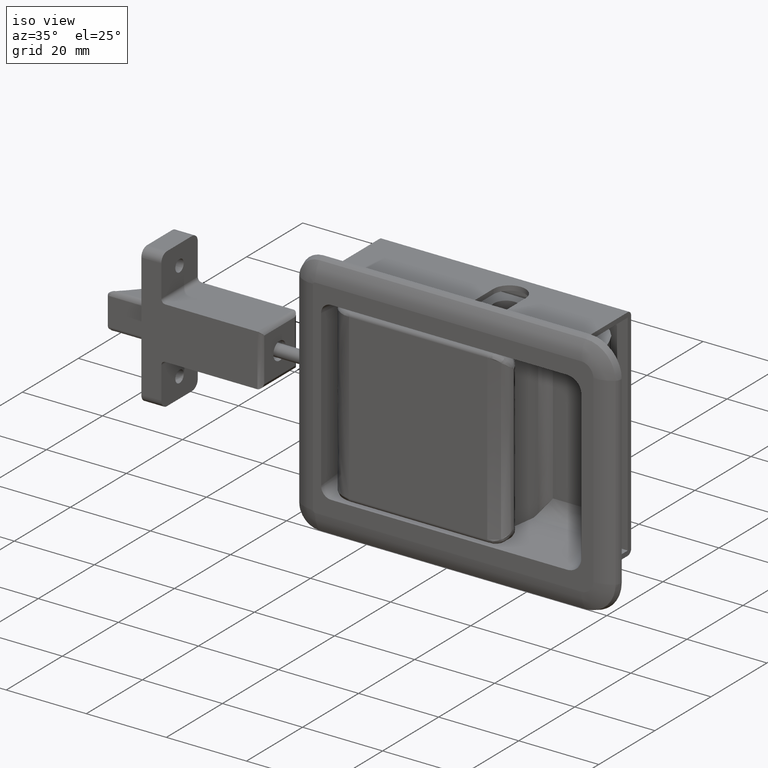
[diagram: clean part render]
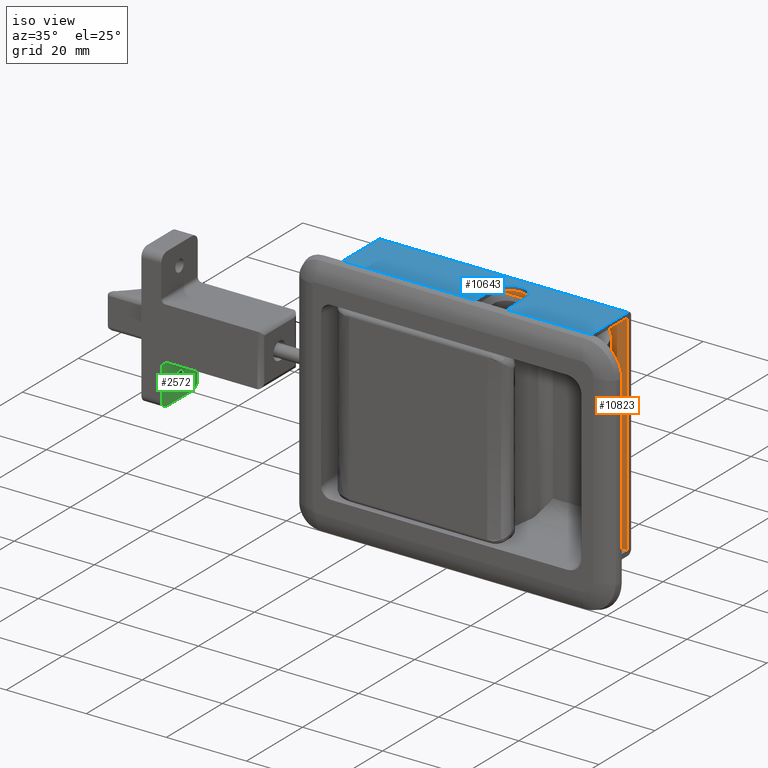
[diagram: same view with three faces highlighted in distinct colors, each labeled with its STEP entity id]
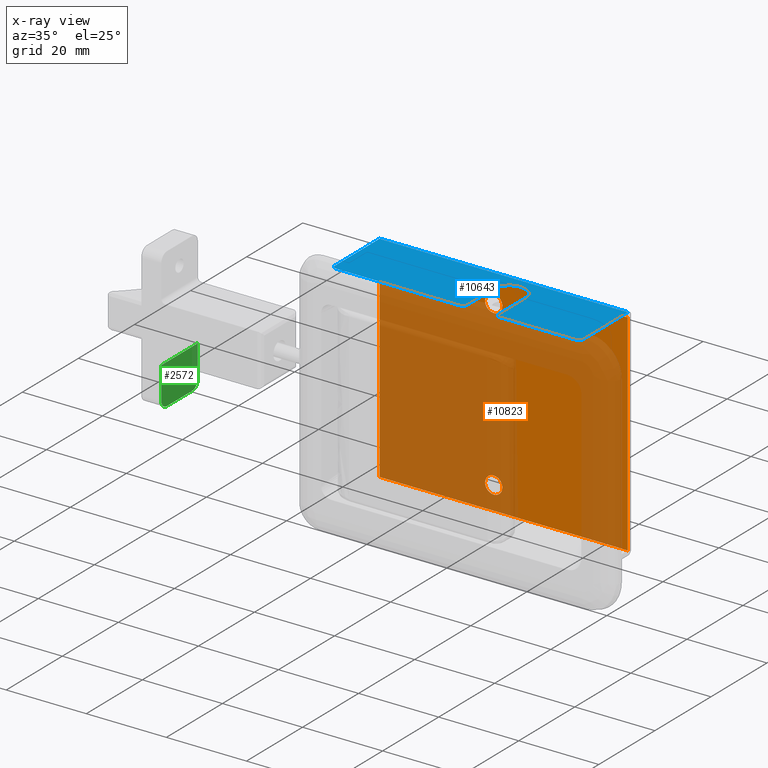
[diagram: x-ray of the same camera — body ghosted, the three highlighted faces saturated]
A machine part, iso view with three faces highlighted in distinct colors.
The next image is the same camera in x-ray (body ghosted, the three faces saturated) — at least one of them is partly hidden behind the body in this view.
Their STEP definitions:

[orange] entity #10823 — the highlighted face is a freeform B-spline surface patch.
#9396=CARTESIAN_POINT('',(22.006955568731541,42.549999999991492,-22.033487912675501));
#9397=VERTEX_POINT('',#9396);
#9398=CARTESIAN_POINT('',(20.500000000000000,42.549999999998562,-22.649999999999999));
#9399=VERTEX_POINT('',#9398);
#9400=CARTESIAN_POINT('',(22.006955568731541,42.549999999991492,-22.033487912675501));
#9401=CARTESIAN_POINT('',(21.833383932131330,42.549999999992323,-22.204307204109131));
#9402=CARTESIAN_POINT('',(21.369280876385620,42.549999999994483,-22.526038821031559));
#9403=CARTESIAN_POINT('',(20.813203712477510,42.549999999997112,-22.650495695679361));
#9404=CARTESIAN_POINT('',(20.500000000000000,42.549999999998562,-22.649999999999999));
#9405=B_SPLINE_CURVE_WITH_KNOTS('',3,(#9400,#9401,#9402,#9403,#9404),.UNSPECIFIED.,.F.,.U.,(4,1,4),(0.000000173502153,0.730629539242379,1.670008418884083),.UNSPECIFIED.);
#9406=EDGE_CURVE('',#9397,#9399,#9405,.T.);
#9459=CARTESIAN_POINT('',(22.033487823707510,42.550000000009071,-18.993044516222700));
#9460=VERTEX_POINT('',#9459);
#9466=CARTESIAN_POINT('',(20.500000000000000,42.549999999998562,-18.350000000000001));
#9467=VERTEX_POINT('',#9466);
#9468=CARTESIAN_POINT('',(20.500000000000000,42.549999999998562,-18.350000000000001));
#9469=CARTESIAN_POINT('',(20.820246832417322,42.550000000000750,-18.349458072607849));
#9470=CARTESIAN_POINT('',(21.388780072817319,42.550000000004637,-18.479706863277841));
#9471=CARTESIAN_POINT('',(21.859095555745728,42.550000000007870,-18.815306189361561));
#9472=CARTESIAN_POINT('',(22.033487823707510,42.550000000009071,-18.993044516222700));
#9473=B_SPLINE_CURVE_WITH_KNOTS('',3,(#9468,#9469,#9470,#9471,#9472),.UNSPECIFIED.,.F.,.U.,(4,1,4),(0.000000194119987,0.960491909279939,1.707542527531612),.UNSPECIFIED.);
#9474=EDGE_CURVE('',#9467,#9460,#9473,.T.);
#9476=CARTESIAN_POINT('',(18.350000000000019,42.549999999998562,-20.499999753959180));
#9477=VERTEX_POINT('',#9476);
#9478=CARTESIAN_POINT('',(18.350000000000019,42.549999999998562,-20.499999753959180));
#9479=CARTESIAN_POINT('',(18.348873124164570,42.549999999998569,-20.112789943865959));
#9480=CARTESIAN_POINT('',(18.535571252793218,42.549999999998612,-19.445546447695630));
#9481=CARTESIAN_POINT('',(19.089560824981181,42.549999999998491,-18.834521985573549));
#9482=CARTESIAN_POINT('',(19.726423798500470,42.549999999998633,-18.452937415955009));
#9483=CARTESIAN_POINT('',(20.183272344845520,42.549999999998612,-18.349484500534238));
#9484=CARTESIAN_POINT('',(20.500000000000000,42.549999999998562,-18.350000000000001));
#9485=B_SPLINE_CURVE_WITH_KNOTS('',3,(#9478,#9479,#9480,#9481,#9482,#9483,#9484),.UNSPECIFIED.,.F.,.U.,(4,1,1,1,4),(0.000000500345338,1.161052982077539,2.005408912618811,2.427613986051226,3.377550710403197),.UNSPECIFIED.);
#9486=EDGE_CURVE('',#9477,#9467,#9485,.T.);
#9488=CARTESIAN_POINT('',(20.500000000000000,42.549999999998562,-22.649999999999999));
#9489=CARTESIAN_POINT('',(20.253752550945300,42.549999999998583,-22.650138474465699));
#9490=CARTESIAN_POINT('',(19.726076684150250,42.549999999998541,-22.558432769075502));
#9491=CARTESIAN_POINT('',(19.018447290771711,42.549999999998569,-22.134705605475901));
#9492=CARTESIAN_POINT('',(18.484576633514951,42.549999999998633,-21.414237799547529));
#9493=CARTESIAN_POINT('',(18.349510423392420,42.549999999998541,-20.816715440528672));
#9494=CARTESIAN_POINT('',(18.350000000000019,42.549999999998562,-20.499999753959180));
#9495=B_SPLINE_CURVE_WITH_KNOTS('',3,(#9488,#9489,#9490,#9491,#9492,#9493,#9494),.UNSPECIFIED.,.F.,.U.,(4,1,1,1,4),(0.000000499047775,0.738833792027937,1.583242716001235,2.427614185247631,3.377550987775592),.UNSPECIFIED.);
#9496=EDGE_CURVE('',#9399,#9477,#9495,.T.);
#9515=CARTESIAN_POINT('',(22.649999999999981,42.549999999998548,-20.500000246040820));
#9516=VERTEX_POINT('',#9515);
#9517=CARTESIAN_POINT('',(22.649999999999981,42.549999999998548,-20.500000246040820));
#9518=CARTESIAN_POINT('',(22.650530134429221,42.549999999997027,-20.820246447159821));
#9519=CARTESIAN_POINT('',(22.520314567567709,42.549999999994547,-21.388784982667289));
#9520=CARTESIAN_POINT('',(22.184677582092569,42.549999999992252,-21.859092884061891));
#9521=CARTESIAN_POINT('',(22.006955568731541,42.549999999991492,-22.033487912675501));
#9522=B_SPLINE_CURVE_WITH_KNOTS('',3,(#9517,#9518,#9519,#9520,#9521),.UNSPECIFIED.,.F.,.U.,(4,1,4),(0.000000194141672,0.960491799302288,1.707542332024914),.UNSPECIFIED.);
#9523=EDGE_CURVE('',#9516,#9397,#9522,.T.);
#9525=CARTESIAN_POINT('',(22.033487823707510,42.550000000009071,-18.993044516222700));
#9526=CARTESIAN_POINT('',(22.253358207462181,42.550000000007579,-19.216093397475341));
#9527=CARTESIAN_POINT('',(22.554379863028469,42.550000000004040,-19.699938640798980));
#9528=CARTESIAN_POINT('',(22.650164419603509,42.550000000000310,-20.256477824130549));
#9529=CARTESIAN_POINT('',(22.649999999999981,42.549999999998548,-20.500000246040820));
#9530=B_SPLINE_CURVE_WITH_KNOTS('',3,(#9525,#9526,#9527,#9528,#9529),.UNSPECIFIED.,.F.,.U.,(4,1,4),(0.000000173522661,0.939379165713022,1.670008618991998),.UNSPECIFIED.);
#9531=EDGE_CURVE('',#9460,#9516,#9530,.T.);
#9578=CARTESIAN_POINT('',(22.006955568731541,42.549999999991492,18.966512087324499));
#9579=VERTEX_POINT('',#9578);
#9580=CARTESIAN_POINT('',(20.500000000000000,42.549999999998562,18.350000000000001));
#9581=VERTEX_POINT('',#9580);
#9582=CARTESIAN_POINT('',(22.006955568731541,42.549999999991492,18.966512087324499));
#9583=CARTESIAN_POINT('',(21.833361369590271,42.549999999992330,18.795698405664609));
#9584=CARTESIAN_POINT('',(21.369311524407220,42.549999999994377,18.473949198192109));
#9585=CARTESIAN_POINT('',(20.813188274136781,42.549999999997191,18.349511269471570));
#9586=CARTESIAN_POINT('',(20.500000000000000,42.549999999998562,18.350000000000001));
#9587=B_SPLINE_CURVE_WITH_KNOTS('',3,(#9582,#9583,#9584,#9585,#9586),.UNSPECIFIED.,.F.,.U.,(4,1,4),(0.000000173502104,0.730629539242320,1.670008418884087),.UNSPECIFIED.);
#9588=EDGE_CURVE('',#9579,#9581,#9587,.T.);
#9641=CARTESIAN_POINT('',(22.033487823707510,42.550000000009071,22.006955483777290));
#9642=VERTEX_POINT('',#9641);
#9648=CARTESIAN_POINT('',(20.500000000000000,42.549999999998562,22.649999999999999));
#9649=VERTEX_POINT('',#9648);
#9650=CARTESIAN_POINT('',(20.500000000000000,42.549999999998562,22.649999999999999));
#9651=CARTESIAN_POINT('',(20.820227082080660,42.550000000000722,22.650513636305298));
#9652=CARTESIAN_POINT('',(21.388832437544171,42.550000000004680,22.520362876436440));
#9653=CARTESIAN_POINT('',(21.859061431772759,42.550000000007870,22.184651465573051));
#9654=CARTESIAN_POINT('',(22.033487823707510,42.550000000009071,22.006955483777290));
#9655=B_SPLINE_CURVE_WITH_KNOTS('',3,(#9650,#9651,#9652,#9653,#9654),.UNSPECIFIED.,.F.,.U.,(4,1,4),(0.000000194119794,0.960491909279892,1.707542527531615),.UNSPECIFIED.);
#9656=EDGE_CURVE('',#9649,#9642,#9655,.T.);
#9658=CARTESIAN_POINT('',(18.350000000000019,42.549999999998562,20.500000246040820));
#9659=VERTEX_POINT('',#9658);
#9660=CARTESIAN_POINT('',(18.350000000000019,42.549999999998562,20.500000246040820));
#9661=CARTESIAN_POINT('',(18.349885378164078,42.549999999998583,20.746238638340269));
#9662=CARTESIAN_POINT('',(18.441533471171020,42.549999999998541,21.273931063564191));
#9663=CARTESIAN_POINT('',(18.865314712683279,42.549999999998562,21.981532001325188));
#9664=CARTESIAN_POINT('',(19.585747707618999,42.549999999998548,22.515475585438288));
#9665=CARTESIAN_POINT('',(20.183288614077629,42.549999999998519,22.650446674603081));
#9666=CARTESIAN_POINT('',(20.500000000000000,42.549999999998562,22.649999999999999));
#9667=B_SPLINE_CURVE_WITH_KNOTS('',3,(#9660,#9661,#9662,#9663,#9664,#9665,#9666),.UNSPECIFIED.,.F.,.U.,(4,1,1,1,4),(0.000000500345446,0.738833732423823,1.583242585907885,2.427613986051440,3.377550710403195),.UNSPECIFIED.);
#9668=EDGE_CURVE('',#9659,#9649,#9667,.T.);
#9670=CARTESIAN_POINT('',(20.500000000000000,42.549999999998562,18.350000000000001));
#9671=CARTESIAN_POINT('',(20.253741433115469,42.549999999998569,18.349883730222260));
#9672=CARTESIAN_POINT('',(19.726091643988969,42.549999999998548,18.441535363766249));
#9673=CARTESIAN_POINT('',(19.018439558766620,42.549999999998548,18.865310855373028));
#9674=CARTESIAN_POINT('',(18.484580376394440,42.549999999998668,19.585757111136662));
#9675=CARTESIAN_POINT('',(18.349510471799778,42.549999999998441,20.183283741938052));
#9676=CARTESIAN_POINT('',(18.350000000000019,42.549999999998562,20.500000246040820));
#9677=B_SPLINE_CURVE_WITH_KNOTS('',3,(#9670,#9671,#9672,#9673,#9674,#9675,#9676),.UNSPECIFIED.,.F.,.U.,(4,1,1,1,4),(0.000000499045924,0.738833792026614,1.583242716000543,2.427614185247384,3.377550987775607),.UNSPECIFIED.);
#9678=EDGE_CURVE('',#9581,#9659,#9677,.T.);
#9697=CARTESIAN_POINT('',(22.649999999999981,42.549999999998548,20.499999753959180));
#9698=VERTEX_POINT('',#9697);
#9699=CARTESIAN_POINT('',(22.649999999999981,42.549999999998548,20.499999753959180));
#9700=CARTESIAN_POINT('',(22.650539809060039,42.549999999996963,20.179751156776931));
#9701=CARTESIAN_POINT('',(22.520296649771819,42.549999999994682,19.611219706738382));
#9702=CARTESIAN_POINT('',(22.184693049004370,42.549999999992210,19.140906163267118));
#9703=CARTESIAN_POINT('',(22.006955568731541,42.549999999991492,18.966512087324499));
#9704=B_SPLINE_CURVE_WITH_KNOTS('',3,(#9699,#9700,#9701,#9702,#9703),.UNSPECIFIED.,.F.,.U.,(4,1,4),(0.000000194141464,0.960491799302277,1.707542332024911),.UNSPECIFIED.);
#9705=EDGE_CURVE('',#9698,#9579,#9704,.T.);
#9707=CARTESIAN_POINT('',(22.033487823707510,42.550000000009071,22.006955483777290));
#9708=CARTESIAN_POINT('',(22.253354319394091,42.550000000007543,21.783915749394730));
#9709=CARTESIAN_POINT('',(22.554389218164701,42.550000000004133,21.300042723816969));
#9710=CARTESIAN_POINT('',(22.650159436776871,42.550000000000210,20.743541671685112));
#9711=CARTESIAN_POINT('',(22.649999999999981,42.549999999998548,20.499999753959180));
#9712=B_SPLINE_CURVE_WITH_KNOTS('',3,(#9707,#9708,#9709,#9710,#9711),.UNSPECIFIED.,.F.,.U.,(4,1,4),(0.000000173522663,0.939379165713052,1.670008618991993),.UNSPECIFIED.);
#9713=EDGE_CURVE('',#9642,#9698,#9712,.T.);
#10429=CARTESIAN_POINT('',(54.0,42.549999999999997,-26.300000000000001));
#10430=VERTEX_POINT('',#10429);
#10480=CARTESIAN_POINT('',(54.0,42.549999999999997,26.300000000000001));
#10481=VERTEX_POINT('',#10480);
#10487=CARTESIAN_POINT('',(54.0,42.549999999999997,26.300000000000001));
#10488=CARTESIAN_POINT('',(54.0,42.549999999999997,-26.300000000000001));
#10489=QUASI_UNIFORM_CURVE('',1,(#10487,#10488),.UNSPECIFIED.,.F.,.U.);
#10490=EDGE_CURVE('',#10481,#10430,#10489,.T.);
#10508=CARTESIAN_POINT('',(-8.0,42.549999999999997,-26.300000000000001));
#10509=VERTEX_POINT('',#10508);
#10515=CARTESIAN_POINT('',(-8.0,42.549999999999997,26.300000000000001));
#10516=VERTEX_POINT('',#10515);
#10517=CARTESIAN_POINT('',(-8.0,42.549999999999997,26.300000000000001));
#10518=CARTESIAN_POINT('',(-8.0,42.549999999999997,-26.300000000000001));
#10519=QUASI_UNIFORM_CURVE('',1,(#10517,#10518),.UNSPECIFIED.,.F.,.U.);
#10520=EDGE_CURVE('',#10516,#10509,#10519,.T.);
#10589=CARTESIAN_POINT('',(-8.0,42.549999999999997,26.300000000000001));
#10590=CARTESIAN_POINT('',(54.0,42.549999999999997,26.300000000000001));
#10591=QUASI_UNIFORM_CURVE('',1,(#10589,#10590),.UNSPECIFIED.,.F.,.U.);
#10592=EDGE_CURVE('',#10516,#10481,#10591,.T.);
#10762=CARTESIAN_POINT('',(-8.0,42.549999999999997,-26.300000000000001));
#10763=CARTESIAN_POINT('',(54.0,42.549999999999997,-26.300000000000001));
#10764=QUASI_UNIFORM_CURVE('',1,(#10762,#10763),.UNSPECIFIED.,.F.,.U.);
#10765=EDGE_CURVE('',#10509,#10430,#10764,.T.);
#10796=CARTESIAN_POINT('',(-11.096899879831970,42.549999999999997,28.927369216355689));
#10797=CARTESIAN_POINT('',(-11.096899879831970,42.549999999999997,-28.927367335233100));
#10798=CARTESIAN_POINT('',(57.096901542801561,42.549999999999997,28.927369216355689));
#10799=CARTESIAN_POINT('',(57.096901542801561,42.549999999999997,-28.927367335233100));
#10800=B_SPLINE_SURFACE_WITH_KNOTS('',1,1,((#10796,#10798),(#10797,#10799)),.UNSPECIFIED.,.F.,.F.,.U.,(2,2),(2,2),(0.0,57.854736551588793),(0.0,68.193801422633527),.UNSPECIFIED.);
#10801=ORIENTED_EDGE('',*,*,#10490,.F.);
#10802=ORIENTED_EDGE('',*,*,#10592,.F.);
#10803=ORIENTED_EDGE('',*,*,#10520,.T.);
#10804=ORIENTED_EDGE('',*,*,#10765,.T.);
#10805=EDGE_LOOP('',(#10801,#10802,#10803,#10804));
#10806=FACE_OUTER_BOUND('',#10805,.T.);
#10807=ORIENTED_EDGE('',*,*,#9678,.T.);
#10808=ORIENTED_EDGE('',*,*,#9668,.T.);
#10809=ORIENTED_EDGE('',*,*,#9656,.T.);
#10810=ORIENTED_EDGE('',*,*,#9713,.T.);
#10811=ORIENTED_EDGE('',*,*,#9705,.T.);
#10812=ORIENTED_EDGE('',*,*,#9588,.T.);
#10813=EDGE_LOOP('',(#10807,#10808,#10809,#10810,#10811,#10812));
#10814=FACE_BOUND('',#10813,.T.);
#10815=ORIENTED_EDGE('',*,*,#9496,.T.);
#10816=ORIENTED_EDGE('',*,*,#9486,.T.);
#10817=ORIENTED_EDGE('',*,*,#9474,.T.);
#10818=ORIENTED_EDGE('',*,*,#9531,.T.);
#10819=ORIENTED_EDGE('',*,*,#9523,.T.);
#10820=ORIENTED_EDGE('',*,*,#9406,.T.);
#10821=EDGE_LOOP('',(#10815,#10816,#10817,#10818,#10819,#10820));
#10822=FACE_BOUND('',#10821,.T.);
#10823=ADVANCED_FACE('',(#10806,#10814,#10822),#10800,.T.);

[blue] entity #10643 — the highlighted face is a freeform B-spline surface patch.
#9875=CARTESIAN_POINT('',(34.0,25.550000000000001,27.500000000000000));
#9876=VERTEX_POINT('',#9875);
#9882=CARTESIAN_POINT('',(33.0,26.550000000000001,27.500000000000000));
#9883=VERTEX_POINT('',#9882);
#9884=CARTESIAN_POINT('',(33.0,26.550000000000001,27.500000000000000));
#9885=CARTESIAN_POINT('',(32.999686811261171,26.386296230715161,27.499999999999979));
#9886=CARTESIAN_POINT('',(33.061620924866432,26.141197679343151,27.500000000000039));
#9887=CARTESIAN_POINT('',(33.289488744105327,25.817570053308319,27.499999999999972));
#9888=CARTESIAN_POINT('',(33.590973749999677,25.605311155346751,27.500000000000121));
#9889=CARTESIAN_POINT('',(33.869099528339213,25.549896313376639,27.499999999999879));
#9890=CARTESIAN_POINT('',(34.0,25.550000000000001,27.500000000000000));
#9891=B_SPLINE_CURVE_WITH_KNOTS('',3,(#9884,#9885,#9886,#9887,#9888,#9889,#9890),.UNSPECIFIED.,.F.,.U.,(4,1,1,1,4),(0.000001361276667,0.490937338281228,0.736477614580349,1.178215753120568,1.570953883735304),.UNSPECIFIED.);
#9892=EDGE_CURVE('',#9883,#9876,#9891,.T.);
#9930=CARTESIAN_POINT('',(25.0,26.550000000000001,27.500000000000000));
#9931=VERTEX_POINT('',#9930);
#9937=CARTESIAN_POINT('',(24.0,25.550000000000001,27.500000000000000));
#9938=VERTEX_POINT('',#9937);
#9939=CARTESIAN_POINT('',(24.0,25.550000000000001,27.500000000000000));
#9940=CARTESIAN_POINT('',(24.180112893212812,25.549512424666428,27.500000000000021));
#9941=CARTESIAN_POINT('',(24.490403633971951,25.636285178395301,27.500000000000000));
#9942=CARTESIAN_POINT('',(24.886066934295599,25.994788370731222,27.499999999999989));
#9943=CARTESIAN_POINT('',(25.001004820257300,26.336972768444419,27.500000000000011));
#9944=CARTESIAN_POINT('',(25.0,26.550000000000001,27.500000000000000));
#9945=B_SPLINE_CURVE_WITH_KNOTS('',3,(#9939,#9940,#9941,#9942,#9943,#9944),.UNSPECIFIED.,.F.,.U.,(4,1,1,4),(0.000001361275460,0.540063759712677,0.932730097958646,1.570953883735315),.UNSPECIFIED.);
#9946=EDGE_CURVE('',#9938,#9931,#9945,.T.);
#10129=CARTESIAN_POINT('',(33.0,36.049999999999997,27.500000000000000));
#10130=VERTEX_POINT('',#10129);
#10136=CARTESIAN_POINT('',(29.000000236385350,40.049999999999997,27.500000000000000));
#10137=VERTEX_POINT('',#10136);
#10138=CARTESIAN_POINT('',(33.0,36.049999999999997,27.500000000000000));
#10139=CARTESIAN_POINT('',(33.000297743742273,36.508183887122108,27.499999999999979));
#10140=CARTESIAN_POINT('',(32.846538570753133,37.391589674690508,27.500000000000021));
#10141=CARTESIAN_POINT('',(32.287237493374207,38.407825560978573,27.499999999999961));
#10142=CARTESIAN_POINT('',(31.561499436320119,39.169804158750473,27.500000000000082));
#10143=CARTESIAN_POINT('',(30.537457815536438,39.836555500760852,27.499999999999758));
#10144=CARTESIAN_POINT('',(29.589195086407880,40.050773525902002,27.500000000000249));
#10145=CARTESIAN_POINT('',(29.000000236385350,40.049999999999997,27.500000000000000));
#10146=B_SPLINE_CURVE_WITH_KNOTS('',3,(#10138,#10139,#10140,#10141,#10142,#10143,#10144,#10145),.UNSPECIFIED.,.F.,.U.,(4,1,1,1,1,4),(0.000000762668739,1.374471856350838,2.650868453108068,3.436200096749541,4.516142896995534,6.283342844253856),.UNSPECIFIED.);
#10147=EDGE_CURVE('',#10130,#10137,#10146,.T.);
#10149=CARTESIAN_POINT('',(25.0,36.049999999999997,27.500000000000000));
#10150=VERTEX_POINT('',#10149);
#10151=CARTESIAN_POINT('',(29.000000236385350,40.049999999999997,27.500000000000000));
#10152=CARTESIAN_POINT('',(28.607294251425010,40.050133624890513,27.500000000000028));
#10153=CARTESIAN_POINT('',(27.821979737124661,39.933418769539372,27.499999999999929));
#10154=CARTESIAN_POINT('',(26.625547572247950,39.368046725232077,27.500000000000121));
#10155=CARTESIAN_POINT('',(25.610970250956662,38.353773302896670,27.499999999999680));
#10156=CARTESIAN_POINT('',(25.086838235638758,37.130017996035768,27.500000000000480));
#10157=CARTESIAN_POINT('',(25.000011792045459,36.344500745952161,27.499999999999620));
#10158=CARTESIAN_POINT('',(25.0,36.049999999999997,27.500000000000000));
#10159=B_SPLINE_CURVE_WITH_KNOTS('',3,(#10151,#10152,#10153,#10154,#10155,#10156,#10157,#10158),.UNSPECIFIED.,.F.,.U.,(4,1,1,1,1,4),(0.000000762350087,1.178113792650666,2.356311888289327,3.927031985046542,5.399760265020920,6.283343110721854),.UNSPECIFIED.);
#10160=EDGE_CURVE('',#10137,#10150,#10159,.T.);
#10175=CARTESIAN_POINT('',(25.0,36.049999999999997,27.500000000000000));
#10176=CARTESIAN_POINT('',(25.0,26.550000000000001,27.500000000000000));
#10177=QUASI_UNIFORM_CURVE('',1,(#10175,#10176),.UNSPECIFIED.,.F.,.U.);
#10178=EDGE_CURVE('',#10150,#9931,#10177,.T.);
#10201=CARTESIAN_POINT('',(33.0,26.550000000000001,27.500000000000000));
#10202=CARTESIAN_POINT('',(33.0,36.049999999999997,27.500000000000000));
#10203=QUASI_UNIFORM_CURVE('',1,(#10201,#10202),.UNSPECIFIED.,.F.,.U.);
#10204=EDGE_CURVE('',#9883,#10130,#10203,.T.);
#10331=CARTESIAN_POINT('',(53.0,25.550000000000001,27.500000000000000));
#10332=VERTEX_POINT('',#10331);
#10333=CARTESIAN_POINT('',(54.0,26.550000000000001,27.500000000000000));
#10334=VERTEX_POINT('',#10333);
#10335=CARTESIAN_POINT('',(53.0,25.550000000000001,27.500000000000000));
#10336=CARTESIAN_POINT('',(53.180123362430813,25.549489085790089,27.500000000000000));
#10337=CARTESIAN_POINT('',(53.490391716726911,25.636308126393960,27.500000000000000));
#10338=CARTESIAN_POINT('',(53.886073821745939,25.994776960894509,27.500000000000039));
#10339=CARTESIAN_POINT('',(54.001002515174498,26.336975646947540,27.499999999999961));
#10340=CARTESIAN_POINT('',(54.0,26.550000000000001,27.500000000000000));
#10341=B_SPLINE_CURVE_WITH_KNOTS('',3,(#10335,#10336,#10337,#10338,#10339,#10340),.UNSPECIFIED.,.F.,.U.,(4,1,1,4),(0.000001361275738,0.540063759712749,0.932730097958560,1.570953883735327),.UNSPECIFIED.);
#10342=EDGE_CURVE('',#10332,#10334,#10341,.T.);
#10384=CARTESIAN_POINT('',(-8.0,26.550000000000001,27.500000000000000));
#10385=VERTEX_POINT('',#10384);
#10386=CARTESIAN_POINT('',(-7.0,25.550000000000001,27.500000000000000));
#10387=VERTEX_POINT('',#10386);
#10388=CARTESIAN_POINT('',(-8.0,26.550000000000001,27.500000000000000));
#10389=CARTESIAN_POINT('',(-8.000351597661972,26.386292156848299,27.500000000000089));
#10390=CARTESIAN_POINT('',(-7.938345108004096,26.141204986251779,27.499999999999911));
#10391=CARTESIAN_POINT('',(-7.710524684128015,25.817565937616671,27.499999999999989));
#10392=CARTESIAN_POINT('',(-7.409025196513897,25.605314592241900,27.500000000000131));
#10393=CARTESIAN_POINT('',(-7.130897824944738,25.549893689380749,27.499999999999901));
#10394=CARTESIAN_POINT('',(-7.0,25.550000000000001,27.500000000000000));
#10395=B_SPLINE_CURVE_WITH_KNOTS('',3,(#10388,#10389,#10390,#10391,#10392,#10393,#10394),.UNSPECIFIED.,.F.,.U.,(4,1,1,1,4),(0.000001361275418,0.490937338280427,0.736477614579794,1.178215753120355,1.570953883735328),.UNSPECIFIED.);
#10396=EDGE_CURVE('',#10385,#10387,#10395,.T.);
#10463=CARTESIAN_POINT('',(54.0,42.549999999999997,27.500000000000000));
#10464=VERTEX_POINT('',#10463);
#10474=CARTESIAN_POINT('',(54.0,42.549999999999997,27.500000000000000));
#10475=CARTESIAN_POINT('',(54.0,26.550000000000001,27.500000000000000));
#10476=QUASI_UNIFORM_CURVE('',1,(#10474,#10475),.UNSPECIFIED.,.F.,.U.);
#10477=EDGE_CURVE('',#10464,#10334,#10476,.T.);
#10528=CARTESIAN_POINT('',(-8.0,42.549999999999997,27.500000000000000));
#10529=VERTEX_POINT('',#10528);
#10530=CARTESIAN_POINT('',(-8.0,42.549999999999997,27.500000000000000));
#10531=CARTESIAN_POINT('',(-8.0,26.550000000000001,27.500000000000000));
#10532=QUASI_UNIFORM_CURVE('',1,(#10530,#10531),.UNSPECIFIED.,.F.,.U.);
#10533=EDGE_CURVE('',#10529,#10385,#10532,.T.);
#10604=CARTESIAN_POINT('',(34.0,25.550000000000001,27.500000000000000));
#10605=CARTESIAN_POINT('',(53.0,25.550000000000001,27.500000000000000));
#10606=QUASI_UNIFORM_CURVE('',1,(#10604,#10605),.UNSPECIFIED.,.F.,.U.);
#10607=EDGE_CURVE('',#9876,#10332,#10606,.T.);
#10615=CARTESIAN_POINT('',(-11.096899879831970,24.700849295766059,27.500000000000000));
#10616=CARTESIAN_POINT('',(57.096901542801547,24.700849295766059,27.500000000000000));
#10617=CARTESIAN_POINT('',(-11.096899879831970,43.399149184315512,27.500000000000000));
#10618=CARTESIAN_POINT('',(57.096901542801547,43.399149184315512,27.500000000000000));
#10619=B_SPLINE_SURFACE_WITH_KNOTS('',1,1,((#10615,#10617),(#10616,#10618)),.UNSPECIFIED.,.F.,.F.,.U.,(2,2),(2,2),(0.0,68.193801422633527),(0.0,18.698299888549450),.UNSPECIFIED.);
#10620=ORIENTED_EDGE('',*,*,#10204,.F.);
#10621=ORIENTED_EDGE('',*,*,#9892,.T.);
#10622=ORIENTED_EDGE('',*,*,#10607,.T.);
#10623=ORIENTED_EDGE('',*,*,#10342,.T.);
#10624=ORIENTED_EDGE('',*,*,#10477,.F.);
#10625=CARTESIAN_POINT('',(-8.0,42.549999999999997,27.500000000000000));
#10626=CARTESIAN_POINT('',(54.0,42.549999999999997,27.500000000000000));
#10627=QUASI_UNIFORM_CURVE('',1,(#10625,#10626),.UNSPECIFIED.,.F.,.U.);
#10628=EDGE_CURVE('',#10529,#10464,#10627,.T.);
#10629=ORIENTED_EDGE('',*,*,#10628,.F.);
#10630=ORIENTED_EDGE('',*,*,#10533,.T.);
#10631=ORIENTED_EDGE('',*,*,#10396,.T.);
#10632=CARTESIAN_POINT('',(-7.0,25.550000000000001,27.500000000000000));
#10633=CARTESIAN_POINT('',(24.0,25.550000000000001,27.500000000000000));
#10634=QUASI_UNIFORM_CURVE('',1,(#10632,#10633),.UNSPECIFIED.,.F.,.U.);
#10635=EDGE_CURVE('',#10387,#9938,#10634,.T.);
#10636=ORIENTED_EDGE('',*,*,#10635,.T.);
#10637=ORIENTED_EDGE('',*,*,#9946,.T.);
#10638=ORIENTED_EDGE('',*,*,#10178,.F.);
#10639=ORIENTED_EDGE('',*,*,#10160,.F.);
#10640=ORIENTED_EDGE('',*,*,#10147,.F.);
#10641=EDGE_LOOP('',(#10620,#10621,#10622,#10623,#10624,#10629,#10630,#10631,#10636,#10637,#10638,#10639,#10640));
#10642=FACE_OUTER_BOUND('',#10641,.T.);
#10643=ADVANCED_FACE('',(#10642),#10619,.T.);

[green] entity #2572 — the highlighted face is a freeform B-spline surface patch.
#1509=CARTESIAN_POINT('',(15.531384899029490,9.395335768724427,296.999999999824690));
#1510=VERTEX_POINT('',#1509);
#1511=CARTESIAN_POINT('',(15.0,8.250000000000000,297.0));
#1512=VERTEX_POINT('',#1511);
#1513=CARTESIAN_POINT('',(15.531384899029490,9.395335768724427,296.999999999824690));
#1514=CARTESIAN_POINT('',(15.386149605401309,9.272722743621088,296.999999999843680));
#1515=CARTESIAN_POINT('',(15.108698588809441,8.928253085652877,296.999999999895920));
#1516=CARTESIAN_POINT('',(14.999455064549400,8.494462338387008,296.999999999962820));
#1517=CARTESIAN_POINT('',(15.0,8.250000000000000,297.0));
#1518=B_SPLINE_CURVE_WITH_KNOTS('',3,(#1513,#1514,#1515,#1516,#1517),.UNSPECIFIED.,.F.,.U.,(4,1,4),(0.000000420065757,0.570249159715381,1.303363603009557),.UNSPECIFIED.);
#1519=EDGE_CURVE('',#1510,#1512,#1518,.T.);
#1572=CARTESIAN_POINT('',(17.588059163812918,9.282529855203977,297.000000000180590));
#1573=VERTEX_POINT('',#1572);
#1579=CARTESIAN_POINT('',(18.0,8.250000000000000,297.0));
#1580=VERTEX_POINT('',#1579);
#1581=CARTESIAN_POINT('',(18.0,8.250000000000000,297.0));
#1582=CARTESIAN_POINT('',(18.000316705182271,8.463589035311475,297.000000000037690));
#1583=CARTESIAN_POINT('',(17.917447085884561,8.842877591443852,297.000000000103280));
#1584=CARTESIAN_POINT('',(17.702456697584122,9.162119389563456,297.000000000159500));
#1585=CARTESIAN_POINT('',(17.588059163812918,9.282529855203977,297.000000000180590));
#1586=B_SPLINE_CURVE_WITH_KNOTS('',3,(#1581,#1582,#1583,#1584,#1585),.UNSPECIFIED.,.F.,.U.,(4,1,4),(0.000000214833545,0.640631571600978,1.138933082773269),.UNSPECIFIED.);
#1587=EDGE_CURVE('',#1580,#1573,#1586,.T.);
#1589=CARTESIAN_POINT('',(16.500012489314901,6.750000000051995,297.0));
#1590=VERTEX_POINT('',#1589);
#1591=CARTESIAN_POINT('',(16.500012489314901,6.750000000051995,297.0));
#1592=CARTESIAN_POINT('',(16.720964201013860,6.749691491992659,296.999999999999320));
#1593=CARTESIAN_POINT('',(17.137905849201381,6.843832866780081,297.000000000001020));
#1594=CARTESIAN_POINT('',(17.600129642329058,7.186607788989416,296.999999999999720));
#1595=CARTESIAN_POINT('',(17.917101395826080,7.661198386660737,297.000000000000280));
#1596=CARTESIAN_POINT('',(18.000356165161101,8.029032431101475,297.000000000000230));
#1597=CARTESIAN_POINT('',(18.0,8.250000000000000,297.0));
#1598=B_SPLINE_CURVE_WITH_KNOTS('',3,(#1591,#1592,#1593,#1594,#1595,#1596,#1597),.UNSPECIFIED.,.F.,.U.,(4,1,1,1,4),(0.000001168557494,0.662762222231187,1.251782962086850,1.693662717408974,2.356423785241666),.UNSPECIFIED.);
#1599=EDGE_CURVE('',#1590,#1580,#1598,.T.);
#1601=CARTESIAN_POINT('',(15.0,8.250000000000000,297.0));
#1602=CARTESIAN_POINT('',(14.999679110919470,8.029042983709124,296.999999999999890));
#1603=CARTESIAN_POINT('',(15.082864193439070,7.661171645675728,297.000000000000680));
#1604=CARTESIAN_POINT('',(15.399907812849239,7.186608707948291,296.999999999999720));
#1605=CARTESIAN_POINT('',(15.862116004824021,6.843865115341478,296.999999999999320));
#1606=CARTESIAN_POINT('',(16.279052212952308,6.749660696604096,297.000000000000510));
#1607=CARTESIAN_POINT('',(16.500012489314901,6.750000000051995,297.0));
#1608=B_SPLINE_CURVE_WITH_KNOTS('',3,(#1601,#1602,#1603,#1604,#1605,#1606,#1607),.UNSPECIFIED.,.F.,.U.,(4,1,1,1,4),(0.000001102663565,0.662766124474443,1.104648540668746,1.693672857339551,2.356437864983921),.UNSPECIFIED.);
#1609=EDGE_CURVE('',#1512,#1590,#1608,.T.);
#1628=CARTESIAN_POINT('',(16.499987510685109,9.749999999948006,297.000000000000110));
#1629=VERTEX_POINT('',#1628);
#1630=CARTESIAN_POINT('',(16.499987510685109,9.749999999948006,297.000000000000110));
#1631=CARTESIAN_POINT('',(16.148701107055238,9.750977166754213,296.999999999936220));
#1632=CARTESIAN_POINT('',(15.798819847759569,9.623343652757841,296.999999999873520));
#1633=CARTESIAN_POINT('',(15.531384899029490,9.395335768724427,296.999999999824690));
#1634=B_SPLINE_CURVE_WITH_KNOTS('',3,(#1630,#1631,#1632,#1633),.UNSPECIFIED.,.F.,.U.,(4,4),(0.000000244599076,1.053065105878358),.UNSPECIFIED.);
#1635=EDGE_CURVE('',#1629,#1510,#1634,.T.);
#1637=CARTESIAN_POINT('',(17.588059163812918,9.282529855203977,297.000000000180590));
#1638=CARTESIAN_POINT('',(17.465927894020741,9.411410067795627,297.000000000160530));
#1639=CARTESIAN_POINT('',(17.133690751010310,9.655426501388403,297.000000000104880));
#1640=CARTESIAN_POINT('',(16.728318434202919,9.750409784267378,297.000000000038200));
#1641=CARTESIAN_POINT('',(16.499987510685109,9.749999999948006,297.000000000000110));
#1642=B_SPLINE_CURVE_WITH_KNOTS('',3,(#1637,#1638,#1639,#1640,#1641),.UNSPECIFIED.,.F.,.U.,(4,1,4),(0.000000300563961,0.532682540775544,1.217508554430652),.UNSPECIFIED.);
#1643=EDGE_CURVE('',#1573,#1629,#1642,.T.);
#1989=CARTESIAN_POINT('',(21.500000000000000,1.750000000000000,297.0));
#1990=VERTEX_POINT('',#1989);
#2002=CARTESIAN_POINT('',(21.500000000000000,14.750000000000000,297.0));
#2003=VERTEX_POINT('',#2002);
#2004=CARTESIAN_POINT('',(21.500000000000000,14.750000000000000,297.0));
#2005=CARTESIAN_POINT('',(21.500000000000000,1.750000000000000,297.0));
#2006=QUASI_UNIFORM_CURVE('',1,(#2004,#2005),.UNSPECIFIED.,.F.,.U.);
#2007=EDGE_CURVE('',#2003,#1990,#2006,.T.);
#2153=CARTESIAN_POINT('',(13.500000000000000,1.750000000000000,297.0));
#2154=VERTEX_POINT('',#2153);
#2155=CARTESIAN_POINT('',(11.500000000000000,3.750000000000000,297.0));
#2156=VERTEX_POINT('',#2155);
#2157=CARTESIAN_POINT('',(13.500000000000000,1.750000000000000,297.0));
#2158=CARTESIAN_POINT('',(13.205384236928870,1.749539388319051,297.000000000000110));
#2159=CARTESIAN_POINT('',(12.649471522475720,1.875178501480692,297.000000000000230));
#2160=CARTESIAN_POINT('',(12.033141298687211,2.332136404382869,296.999999999999720));
#2161=CARTESIAN_POINT('',(11.610544617184280,2.964961594886196,297.000000000000680));
#2162=CARTESIAN_POINT('',(11.499514030868619,3.455375395948472,297.000000000000230));
#2163=CARTESIAN_POINT('',(11.500000000000000,3.750000000000000,297.0));
#2164=B_SPLINE_CURVE_WITH_KNOTS('',3,(#2157,#2158,#2159,#2160,#2161,#2162,#2163),.UNSPECIFIED.,.F.,.U.,(4,1,1,1,4),(0.000000612372147,0.883680045041936,1.669118780857469,2.258228333945849,3.141907766615641),.UNSPECIFIED.);
#2165=EDGE_CURVE('',#2154,#2156,#2164,.T.);
#2208=CARTESIAN_POINT('',(11.500000000000000,12.750000000000000,297.0));
#2209=VERTEX_POINT('',#2208);
#2210=CARTESIAN_POINT('',(13.500000000000000,14.750000000000000,297.0));
#2211=VERTEX_POINT('',#2210);
#2212=CARTESIAN_POINT('',(11.500000000000000,12.750000000000000,297.0));
#2213=CARTESIAN_POINT('',(11.499033554228291,13.110165894821851,297.000000000000110));
#2214=CARTESIAN_POINT('',(11.672539553152170,13.730932184688930,297.000000000000280));
#2215=CARTESIAN_POINT('',(12.210397404818240,14.323987572827450,296.999999999999720));
#2216=CARTESIAN_POINT('',(12.812970391046269,14.665182520022871,297.000000000000680));
#2217=CARTESIAN_POINT('',(13.238150166285861,14.750290838507009,296.999999999999600));
#2218=CARTESIAN_POINT('',(13.500000000000000,14.750000000000000,297.0));
#2219=B_SPLINE_CURVE_WITH_KNOTS('',3,(#2212,#2213,#2214,#2215,#2216,#2217,#2218),.UNSPECIFIED.,.F.,.U.,(4,1,1,1,4),(0.000000612372460,1.080075592442047,1.865461962510326,2.356430978054881,3.141907766615639),.UNSPECIFIED.);
#2220=EDGE_CURVE('',#2209,#2211,#2219,.T.);
#2488=CARTESIAN_POINT('',(21.500000000000000,14.750000000000000,297.0));
#2489=CARTESIAN_POINT('',(13.500000000000000,14.750000000000000,297.0));
#2490=QUASI_UNIFORM_CURVE('',1,(#2488,#2489),.UNSPECIFIED.,.F.,.U.);
#2491=EDGE_CURVE('',#2003,#2211,#2490,.T.);
#2538=CARTESIAN_POINT('',(21.500000000000000,1.750000000000000,297.0));
#2539=CARTESIAN_POINT('',(13.500000000000000,1.750000000000000,297.0));
#2540=QUASI_UNIFORM_CURVE('',1,(#2538,#2539),.UNSPECIFIED.,.F.,.U.);
#2541=EDGE_CURVE('',#1990,#2154,#2540,.T.);
#2547=CARTESIAN_POINT('',(21.999499980618062,1.100650025196523,297.0));
#2548=CARTESIAN_POINT('',(11.000499751161041,1.100650025196523,297.0));
#2549=CARTESIAN_POINT('',(21.999499980618062,15.399350323490649,297.0));
#2550=CARTESIAN_POINT('',(11.000499751161041,15.399350323490649,297.0));
#2551=B_SPLINE_SURFACE_WITH_KNOTS('',1,1,((#2547,#2549),(#2548,#2550)),.UNSPECIFIED.,.F.,.F.,.U.,(2,2),(2,2),(0.0,10.999000229457019),(0.0,14.298700298294129),.UNSPECIFIED.);
#2552=ORIENTED_EDGE('',*,*,#2491,.F.);
#2553=ORIENTED_EDGE('',*,*,#2007,.T.);
#2554=ORIENTED_EDGE('',*,*,#2541,.T.);
#2555=ORIENTED_EDGE('',*,*,#2165,.T.);
#2556=CARTESIAN_POINT('',(11.500000000000000,3.750000000000000,297.0));
#2557=CARTESIAN_POINT('',(11.500000000000000,12.750000000000000,297.0));
#2558=QUASI_UNIFORM_CURVE('',1,(#2556,#2557),.UNSPECIFIED.,.F.,.U.);
#2559=EDGE_CURVE('',#2156,#2209,#2558,.T.);
#2560=ORIENTED_EDGE('',*,*,#2559,.T.);
#2561=ORIENTED_EDGE('',*,*,#2220,.T.);
#2562=EDGE_LOOP('',(#2552,#2553,#2554,#2555,#2560,#2561));
#2563=FACE_OUTER_BOUND('',#2562,.T.);
#2564=ORIENTED_EDGE('',*,*,#1609,.T.);
#2565=ORIENTED_EDGE('',*,*,#1599,.T.);
#2566=ORIENTED_EDGE('',*,*,#1587,.T.);
#2567=ORIENTED_EDGE('',*,*,#1643,.T.);
#2568=ORIENTED_EDGE('',*,*,#1635,.T.);
#2569=ORIENTED_EDGE('',*,*,#1519,.T.);
#2570=EDGE_LOOP('',(#2564,#2565,#2566,#2567,#2568,#2569));
#2571=FACE_BOUND('',#2570,.T.);
#2572=ADVANCED_FACE('',(#2563,#2571),#2551,.T.);